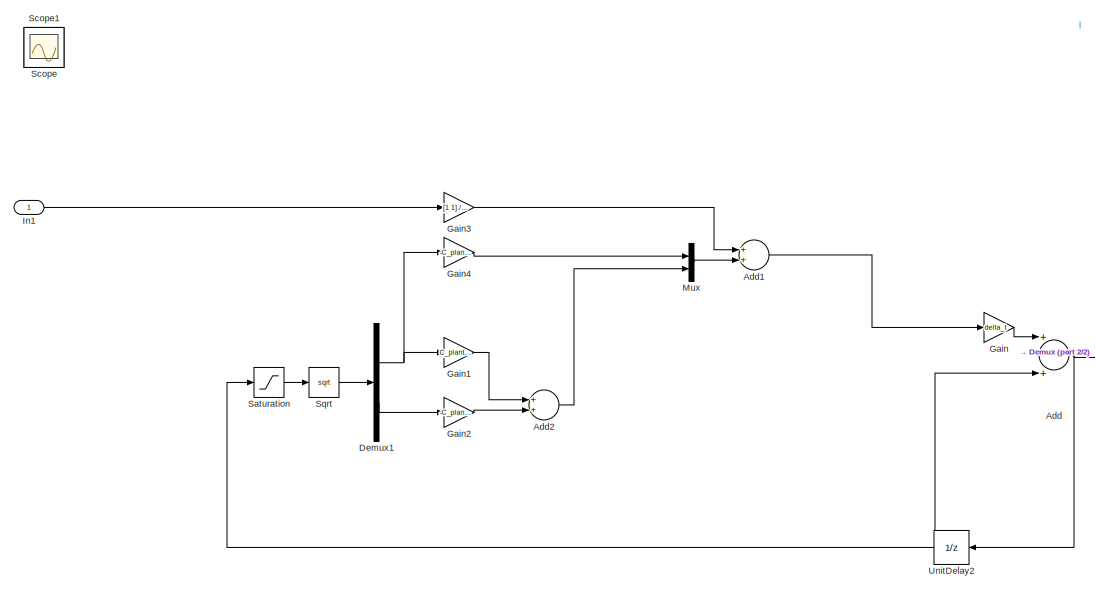
[diagram: root canvas - part 1/2, center side, full height]
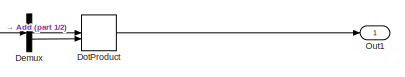
[diagram: root canvas - part 2/2, middle right region]
MODEL slx_30947d9dbda0
KIND model
CONFIG AbsTol = auto
CONFIG FixedStep = delta_t
CONFIG MaxStep = auto
CONFIG MinStep = auto
CONFIG PreLoadFcn = model_prediction_init
CONFIG RelTol = 1e-3
CONFIG SampleTimeConstraint = Unconstrained
CONFIG Solver = ode1
CONFIG SolverMode = Auto
CONFIG SolverName = ode1
CONFIG StartTime = 0.0
CONFIG StopTime = inf
BLOCK [Sum] Add
  InputSameDT = off
  OutDataTypeStr = Inherit: Inherit via internal rule
  Ports = [2, 1]
  SaturateOnIntegerOverflow = off
BLOCK [Sum] Add1
  InputSameDT = off
  OutDataTypeStr = Inherit: Inherit via internal rule
  Ports = [2, 1]
  SaturateOnIntegerOverflow = off
BLOCK [Sum] Add2
  InputSameDT = off
  OutDataTypeStr = Inherit: Inherit via internal rule
  Ports = [2, 1]
  SaturateOnIntegerOverflow = off
BLOCK [Demux] Demux
  DisplayOption = bar
  Outputs = 2
  Ports = [1, 2]
BLOCK [Demux] Demux1
  DisplayOption = bar
  Outputs = 2
  Ports = [1, 2]
BLOCK [DotProduct] DotProduct
  OutDataTypeStr = Inherit: Inherit via internal rule
BLOCK [Gain] Gain
  Gain = delta_t
  OutDataTypeStr = Inherit: Inherit via internal rule
  ParamDataTypeStr = Inherit: Inherit via internal rule
  SaturateOnIntegerOverflow = off
BLOCK [Gain] Gain1
  Gain = C_plant(1)/tank_area(2)
  OutDataTypeStr = Inherit: Inherit via internal rule
  ParamDataTypeStr = Inherit: Inherit via internal rule
  SaturateOnIntegerOverflow = off
BLOCK [Gain] Gain2
  Gain = -C_plant(2)/tank_area(2)
  OutDataTypeStr = Inherit: Inherit via internal rule
  ParamDataTypeStr = Inherit: Inherit via internal rule
  SaturateOnIntegerOverflow = off
BLOCK [Gain] Gain3
  Gain = [1 1]./tank_area
  OutDataTypeStr = Inherit: Inherit via internal rule
  ParamDataTypeStr = Inherit: Inherit via internal rule
  SaturateOnIntegerOverflow = off
BLOCK [Gain] Gain4
  Gain = -C_plant(1)/tank_area(1)
  OutDataTypeStr = Inherit: Inherit via internal rule
  ParamDataTypeStr = Inherit: Inherit via internal rule
  SaturateOnIntegerOverflow = off
BLOCK [Inport] In1
  IconDisplay = Port number
BLOCK [Mux] Mux
  DisplayOption = bar
  Inputs = 2
  Ports = [2, 1]
BLOCK [Outport] Out1
  IconDisplay = Port number
BLOCK [Saturate] Saturation
  InputPortMap = u0
  LowerLimit = 0
  Ports = [1, 1]
  UpperLimit = inf
BLOCK [Scope] Scope
  Floating = off
  IOType = viewer
  MaxDataPoints = 7500
  NumInputPorts = 2
  Ports = []
  SampleTime = 0
  ShowLegends = off
  TimeRange = 5
  YMax = 175~4
  YMin = 0~0
  ZoomMode = xonly
BLOCK [Scope] Scope1
  Floating = off
  IOType = viewer
  MaxDataPoints = 7500
  NumInputPorts = 1
  Ports = []
  SampleTime = 0
  SaveName = ScopeData1
  ShowLegends = off
BLOCK [Sqrt] Sqrt
BLOCK [UnitDelay] UnitDelay2
  InitialCondition = [0.01;0.01]
  InputProcessing = Elements as channels (sample based)
  SampleTime = -1
ANNOTATION (root): l
LINE Add1:1 -> Gain:1
LINE Add2:1 -> Mux:2
NET Add:1 -> Demux:1, UnitDelay2:1
NET Demux1:1 -> Gain1:1, Gain4:1
LINE Demux1:2 -> Gain2:1
LINE Demux:1 -> DotProduct:1
LINE Demux:2 -> DotProduct:2
LINE DotProduct:1 -> Out1:1
LINE Gain1:1 -> Add2:1
LINE Gain2:1 -> Add2:2
LINE Gain3:1 -> Add1:1
LINE Gain4:1 -> Mux:1
LINE Gain:1 -> Add:1
LINE In1:1 -> Gain3:1
LINE Mux:1 -> Add1:2
LINE Saturation:1 -> Sqrt:1
LINE Sqrt:1 -> Demux1:1
NET UnitDelay2:1 -> Add:2, Saturation:1
note: NET lines group one-source signal fan-out (src -> all destinations, sorted); 1:1 wires keep LINE
